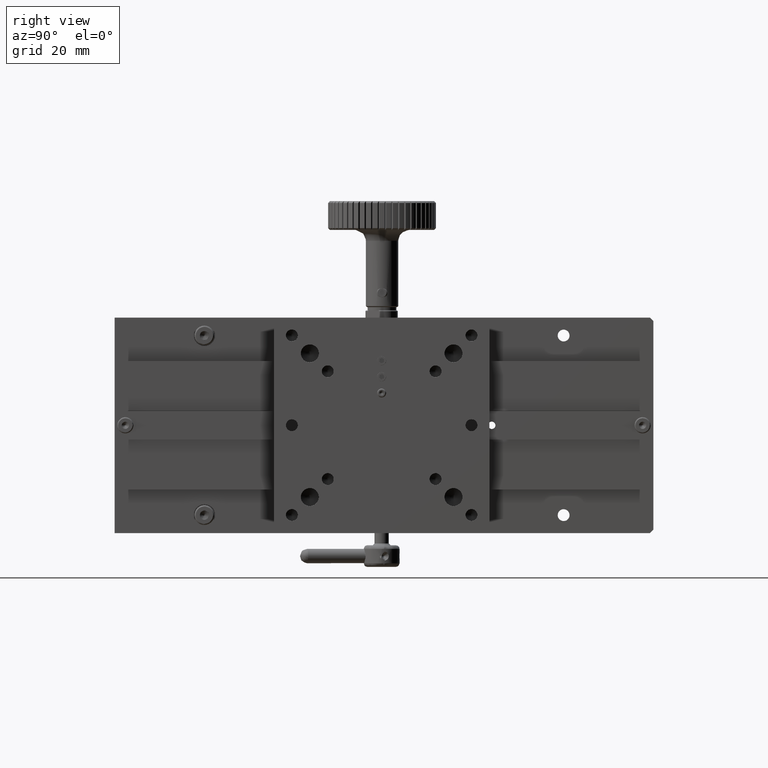
[diagram: clean part render]
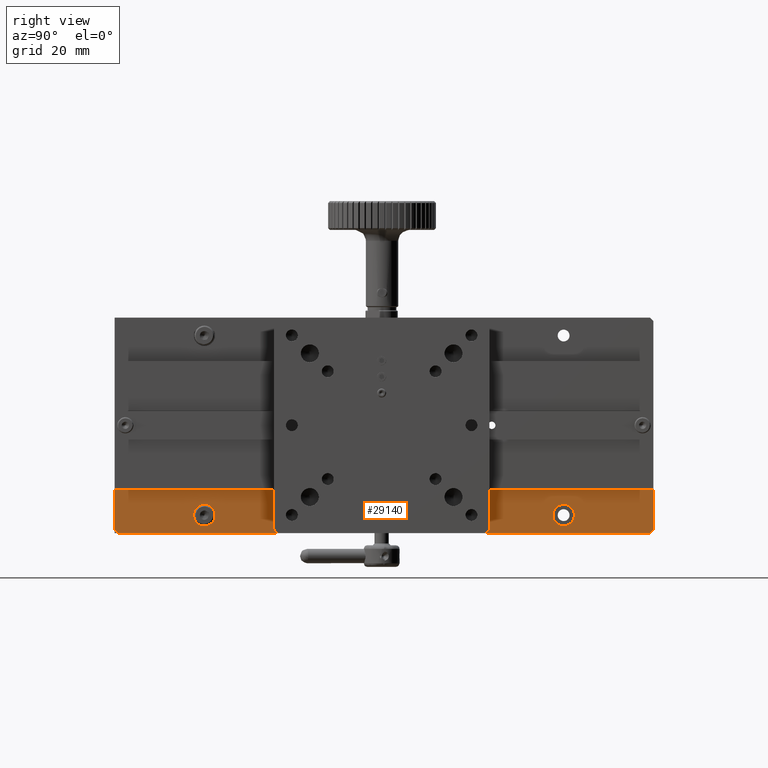
[diagram: same view with one face highlighted and labeled with its STEP entity id]
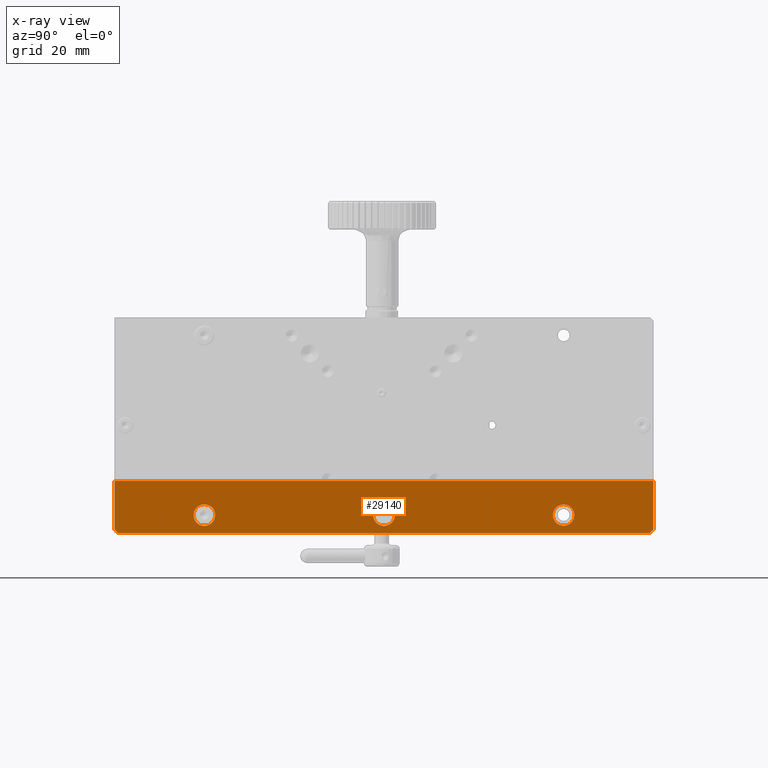
[diagram: x-ray of the same camera — body ghosted, the highlighted face saturated]
A machine part, right view. The second image highlights one B-rep face of the part: STEP entity #29140.
The next image is the same camera in x-ray: the body ghosted, the highlighted face saturated — about 0% of this face is hidden behind the body in this view.
In plain terms, the highlighted planar face has unit normal (-1, -0, 0).
Its self-contained STEP definition (entity closure, byte-faithful):
#1272 = CARTESIAN_POINT ( 'NONE',  ( 56.63262096468515239, 205.8153669698309329, 77.27940562822382731 ) ) ;
#3933 = DIRECTION ( 'NONE',  ( -1.156482317317870344E-14, 0.000000000000000000, -1.000000000000000000 ) ) ;
#4352 = DIRECTION ( 'NONE',  ( 7.314265163693879026E-29, 1.000000000000000000, 6.982962677686243045E-15 ) ) ;
#7160 = CARTESIAN_POINT ( 'NONE',  ( 56.63262096468555740, 56.81536696983099688, 62.77940562822328729 ) ) ;
#10521 = ORIENTED_EDGE ( 'NONE', *, *, #20479, .T. ) ;
#12370 = DIRECTION ( 'NONE',  ( -0.000000000000000000, -6.982962677686278543E-15, 1.000000000000000000 ) ) ;
#13292 = EDGE_CURVE ( 'NONE', #14133, #14133, #85230, .T. ) ;
#13619 = DIRECTION ( 'NONE',  ( 1.000000000000000000, 3.491481338843182265E-15, -1.047444401652937482E-14 ) ) ;
#14133 = VERTEX_POINT ( 'NONE', #104189 ) ;
#15007 = EDGE_CURVE ( 'NONE', #64831, #94578, #39490, .T. ) ;
#18475 = CIRCLE ( 'NONE', #28775, 3.000000000000002665 ) ;
#19974 = ORIENTED_EDGE ( 'NONE', *, *, #24960, .T. ) ;
#20012 = EDGE_CURVE ( 'NONE', #27165, #94578, #56379, .T. ) ;
#20447 = CARTESIAN_POINT ( 'NONE',  ( 56.63262096468516660, 204.8153669698310182, 62.77940562822433179 ) ) ;
#20479 = EDGE_CURVE ( 'NONE', #48884, #22383, #77787, .T. ) ;
#22383 = VERTEX_POINT ( 'NONE', #20447 ) ;
#23432 = AXIS2_PLACEMENT_3D ( 'NONE', #57439, #33171, #47764 ) ;
#23483 = FACE_BOUND ( 'NONE', #28518, .T. ) ;
#24960 = EDGE_CURVE ( 'NONE', #33173, #27165, #37170, .T. ) ;
#27165 = VERTEX_POINT ( 'NONE', #1272 ) ;
#28210 = DIRECTION ( 'NONE',  ( -1.156482317317870344E-14, 0.000000000000000000, -1.000000000000000000 ) ) ;
#28518 = EDGE_LOOP ( 'NONE', ( #75450 ) ) ;
#28775 = AXIS2_PLACEMENT_3D ( 'NONE', #29835, #37935, #3933 ) ;
#29127 = DIRECTION ( 'NONE',  ( -1.156482317317870344E-14, 0.000000000000000000, -1.000000000000000000 ) ) ;
#29140 = ADVANCED_FACE ( 'NONE', ( #88791, #89334, #23483, #81762 ), #64483, .F. ) ;
#29835 = CARTESIAN_POINT ( 'NONE',  ( 56.63262096468534423, 130.8153669698309898, 67.77940562822381310 ) ) ;
#31601 = CARTESIAN_POINT ( 'NONE',  ( 56.63262096468503159, 205.8153669698309898, 63.77940562822431758 ) ) ;
#33171 = DIRECTION ( 'NONE',  ( -1.000000000000000000, -3.491481338843183842E-15, 1.071371622011238504E-14 ) ) ;
#33173 = VERTEX_POINT ( 'NONE', #31601 ) ;
#37170 = LINE ( 'NONE', #86308, #56295 ) ;
#37935 = DIRECTION ( 'NONE',  ( 1.000000000000000000, 3.491481338843182265E-15, -1.047444401652937482E-14 ) ) ;
#39490 = LINE ( 'NONE', #71312, #43914 ) ;
#42140 = CARTESIAN_POINT ( 'NONE',  ( 56.63262096468531581, 130.8153669698309898, 64.77940562822379889 ) ) ;
#43379 = CARTESIAN_POINT ( 'NONE',  ( 56.63262096468503870, 205.8153669698309898, 63.77940562822431758 ) ) ;
#43914 = VECTOR ( 'NONE', #103676, 1000.000000000000000 ) ;
#44359 = EDGE_CURVE ( 'NONE', #50764, #50764, #18475, .T. ) ;
#44775 = DIRECTION ( 'NONE',  ( 1.000000000000000000, 3.491481338843182265E-15, -1.047444401652937482E-14 ) ) ;
#45383 = CARTESIAN_POINT ( 'NONE',  ( 56.63262096468555029, 205.8153669698309898, 62.77940562822431758 ) ) ;
#45512 = CARTESIAN_POINT ( 'NONE',  ( 56.63262096468555029, 56.81536696983071266, 62.77940562822356441 ) ) ;
#47764 = DIRECTION ( 'NONE',  ( 1.071371622011238504E-14, 0.000000000000000000, 1.000000000000000000 ) ) ;
#48006 = ORIENTED_EDGE ( 'NONE', *, *, #49970, .F. ) ;
#48884 = VERTEX_POINT ( 'NONE', #45512 ) ;
#49970 = EDGE_CURVE ( 'NONE', #48884, #64831, #97781, .T. ) ;
#50764 = VERTEX_POINT ( 'NONE', #42140 ) ;
#53803 = ORIENTED_EDGE ( 'NONE', *, *, #20012, .T. ) ;
#54007 = DIRECTION ( 'NONE',  ( 0.000000000000000000, -0.7071067811865474617, -0.7071067811865474617 ) ) ;
#55278 = VERTEX_POINT ( 'NONE', #79587 ) ;
#56295 = VECTOR ( 'NONE', #12370, 1000.000000000000000 ) ;
#56379 = LINE ( 'NONE', #105990, #66594 ) ;
#56792 = VECTOR ( 'NONE', #89726, 1000.000000000000000 ) ;
#56869 = VECTOR ( 'NONE', #54007, 1000.000000000000114 ) ;
#57439 = CARTESIAN_POINT ( 'NONE',  ( 56.63262096468518791, 205.8153669698309329, 77.27940562822432469 ) ) ;
#60962 = CARTESIAN_POINT ( 'NONE',  ( 56.63262096468517370, 180.8153669698309614, 67.77940562822413995 ) ) ;
#61669 = EDGE_CURVE ( 'NONE', #33173, #22383, #70179, .T. ) ;
#64483 = PLANE ( 'NONE',  #23432 ) ;
#64831 = VERTEX_POINT ( 'NONE', #93154 ) ;
#66178 = ORIENTED_EDGE ( 'NONE', *, *, #15007, .F. ) ;
#66594 = VECTOR ( 'NONE', #68058, 1000.000000000000000 ) ;
#68058 = DIRECTION ( 'NONE',  ( -2.150841201566697322E-15, -1.000000000000000000, -3.725366240125795620E-15 ) ) ;
#70179 = LINE ( 'NONE', #43379, #56869 ) ;
#71312 = CARTESIAN_POINT ( 'NONE',  ( 56.63262096468557161, 55.81536696983081924, 92.77940562822335835 ) ) ;
#75450 = ORIENTED_EDGE ( 'NONE', *, *, #100739, .F. ) ;
#77747 = ORIENTED_EDGE ( 'NONE', *, *, #61669, .F. ) ;
#77787 = LINE ( 'NONE', #45383, #85586 ) ;
#78394 = CARTESIAN_POINT ( 'NONE',  ( 56.63262096468552187, 80.81536696983097556, 67.77940562822342940 ) ) ;
#79587 = CARTESIAN_POINT ( 'NONE',  ( 56.63262096468548634, 80.81536696983097556, 64.77940562822342940 ) ) ;
#81349 = ORIENTED_EDGE ( 'NONE', *, *, #13292, .F. ) ;
#81762 = FACE_BOUND ( 'NONE', #91893, .T. ) ;
#82684 = AXIS2_PLACEMENT_3D ( 'NONE', #78394, #13619, #28210 ) ;
#85067 = CARTESIAN_POINT ( 'NONE',  ( 56.63262096468546503, 55.81536696983096846, 77.27940562822341519 ) ) ;
#85230 = CIRCLE ( 'NONE', #102434, 3.000000000000002665 ) ;
#85586 = VECTOR ( 'NONE', #4352, 1000.000000000000000 ) ;
#86052 = ORIENTED_EDGE ( 'NONE', *, *, #44359, .F. ) ;
#86308 = CARTESIAN_POINT ( 'NONE',  ( 56.63262096468503870, 205.8153669698307908, 92.77940562822439574 ) ) ;
#88758 = EDGE_LOOP ( 'NONE', ( #86052 ) ) ;
#88791 = FACE_OUTER_BOUND ( 'NONE', #89251, .T. ) ;
#89251 = EDGE_LOOP ( 'NONE', ( #48006, #10521, #77747, #19974, #53803, #66178 ) ) ;
#89334 = FACE_BOUND ( 'NONE', #88758, .T. ) ;
#89726 = DIRECTION ( 'NONE',  ( 4.906538933386861140E-15, -0.7071067811865378028, 0.7071067811865573427 ) ) ;
#91893 = EDGE_LOOP ( 'NONE', ( #81349 ) ) ;
#93154 = CARTESIAN_POINT ( 'NONE',  ( 56.63262096468555740, 55.81536696983101820, 63.77940562822330151 ) ) ;
#94578 = VERTEX_POINT ( 'NONE', #85067 ) ;
#97781 = LINE ( 'NONE', #7160, #56792 ) ;
#99896 = CIRCLE ( 'NONE', #82684, 3.000000000000002665 ) ;
#100739 = EDGE_CURVE ( 'NONE', #55278, #55278, #99896, .T. ) ;
#102434 = AXIS2_PLACEMENT_3D ( 'NONE', #60962, #44775, #29127 ) ;
#103676 = DIRECTION ( 'NONE',  ( -0.000000000000000000, -6.982962677686278543E-15, 1.000000000000000000 ) ) ;
#104189 = CARTESIAN_POINT ( 'NONE',  ( 56.63262096468513818, 180.8153669698309614, 64.77940562822413995 ) ) ;
#105990 = CARTESIAN_POINT ( 'NONE',  ( 56.63262096468518791, 205.8153669698309329, 77.27940562822432469 ) ) ;